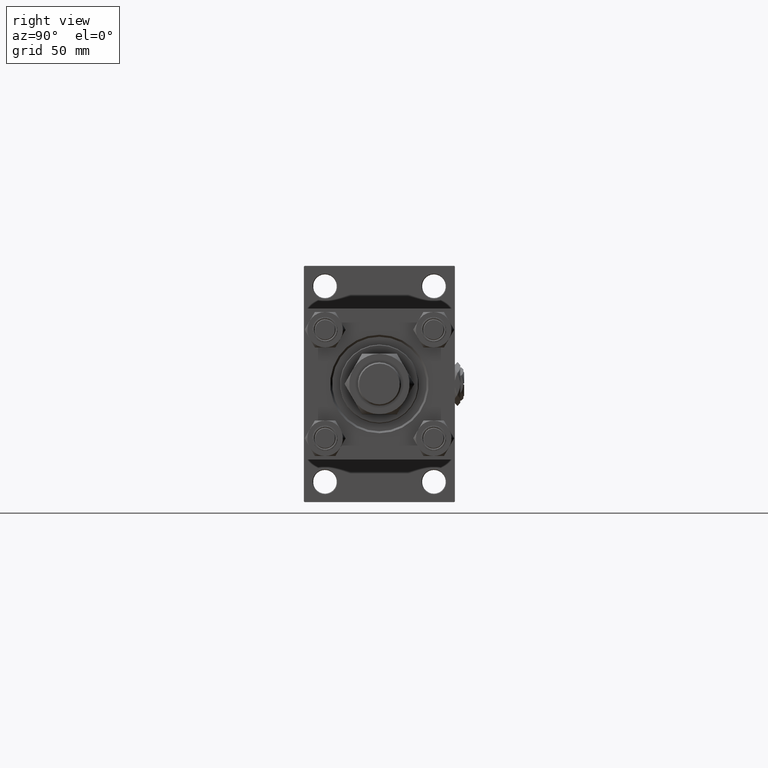
[diagram: clean part render]
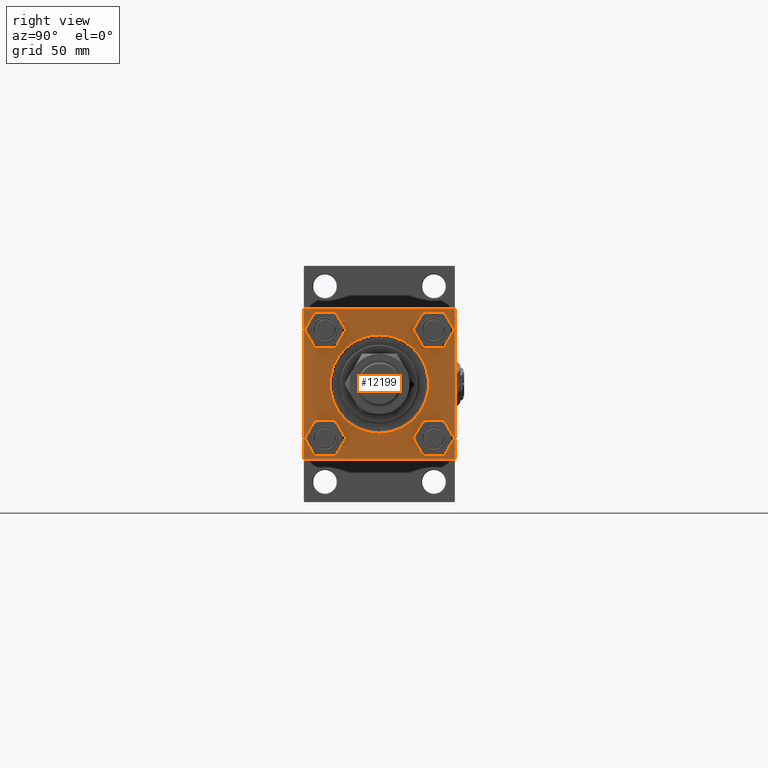
[diagram: same view with one face highlighted and labeled with its STEP entity id]
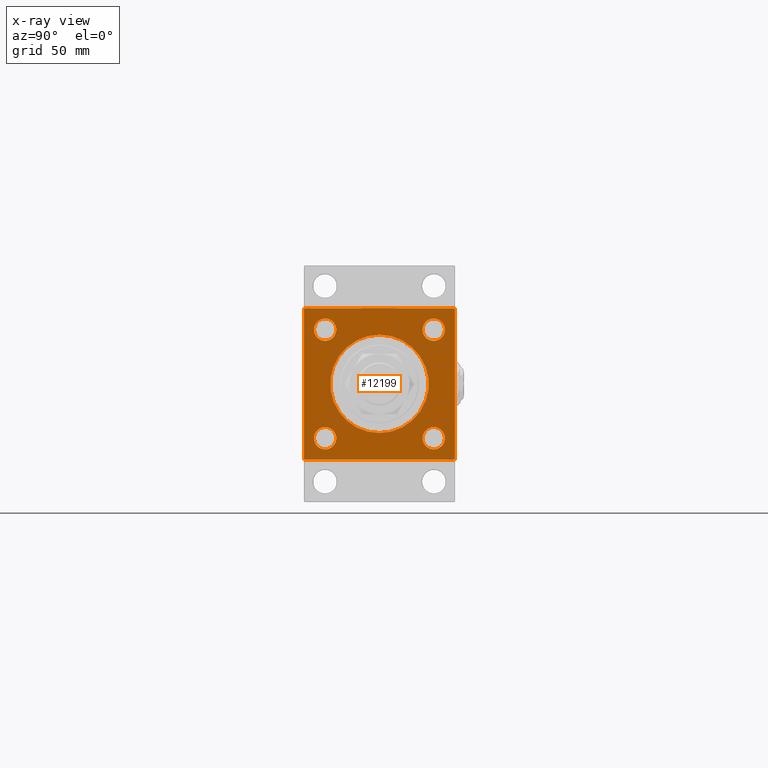
[diagram: x-ray of the same camera — body ghosted, the highlighted face saturated]
A machine part, right view. The second image highlights one B-rep face of the part: STEP entity #12199.
The next image is the same camera in x-ray: the body ghosted, the highlighted face saturated — about 0% of this face is hidden behind the body in this view.
In plain terms, the highlighted planar face has unit normal (-1, 0, 0).
Its self-contained STEP definition (entity closure, byte-faithful):
#170 = ORIENTED_EDGE ( 'NONE', *, *, #34029, .T. ) ;
#515 = LINE ( 'NONE', #21331, #48237 ) ;
#606 = FACE_BOUND ( 'NONE', #34636, .T. ) ;
#620 = CARTESIAN_POINT ( 'NONE',  ( 409.0000000000000000, 41.34999999999999432, 49.85000000000006537 ) ) ;
#664 = AXIS2_PLACEMENT_3D ( 'NONE', #25372, #48566, #27998 ) ;
#669 = EDGE_CURVE ( 'NONE', #11003, #32430, #17275, .T. ) ;
#838 = ORIENTED_EDGE ( 'NONE', *, *, #22503, .T. ) ;
#1967 = CARTESIAN_POINT ( 'NONE',  ( 409.0000000000000000, 0.000000000000000000, -37.50000000000003553 ) ) ;
#2072 = CARTESIAN_POINT ( 'NONE',  ( 409.0000000000000000, -41.34999999999998721, 41.35000000000000853 ) ) ;
#2780 = ORIENTED_EDGE ( 'NONE', *, *, #669, .T. ) ;
#2812 = DIRECTION ( 'NONE',  ( 0.000000000000000000, 0.000000000000000000, 1.000000000000000000 ) ) ;
#3130 = ORIENTED_EDGE ( 'NONE', *, *, #7884, .T. ) ;
#3833 = VECTOR ( 'NONE', #52653, 1000.000000000000000 ) ;
#3897 = VECTOR ( 'NONE', #33304, 1000.000000000000114 ) ;
#4094 = CIRCLE ( 'NONE', #28547, 8.500000000000063949 ) ;
#4181 = DIRECTION ( 'NONE',  ( -0.000000000000000000, 0.000000000000000000, 1.000000000000000000 ) ) ;
#4451 = CARTESIAN_POINT ( 'NONE',  ( 409.0000000000000000, 57.50000000000000000, 57.50000000000000711 ) ) ;
#4846 = VECTOR ( 'NONE', #5533, 1000.000000000000000 ) ;
#4854 = AXIS2_PLACEMENT_3D ( 'NONE', #24453, #15967, #16500 ) ;
#5298 = CIRCLE ( 'NONE', #43810, 8.500000000000063949 ) ;
#5533 = DIRECTION ( 'NONE',  ( 0.000000000000000000, 0.000000000000000000, -1.000000000000000000 ) ) ;
#6063 = EDGE_CURVE ( 'NONE', #14601, #33673, #41976, .T. ) ;
#6185 = CARTESIAN_POINT ( 'NONE',  ( 409.0000000000000000, -56.99999999999998579, -57.49999999999997868 ) ) ;
#6393 = CARTESIAN_POINT ( 'NONE',  ( 409.0000000000000000, 41.34999999999999432, -41.35000000000000142 ) ) ;
#7065 = CARTESIAN_POINT ( 'NONE',  ( 409.0000000000000000, 57.00000000000000000, -57.49999999999996447 ) ) ;
#7884 = EDGE_CURVE ( 'NONE', #28367, #35473, #36654, .T. ) ;
#7894 = DIRECTION ( 'NONE',  ( -1.000000000000000000, 0.000000000000000000, -0.000000000000000000 ) ) ;
#8015 = CARTESIAN_POINT ( 'NONE',  ( 409.0000000000000000, 0.000000000000000000, 0.000000000000000000 ) ) ;
#8094 = VERTEX_POINT ( 'NONE', #1967 ) ;
#8553 = FACE_OUTER_BOUND ( 'NONE', #25302, .T. ) ;
#9276 = CARTESIAN_POINT ( 'NONE',  ( 409.0000000000000000, -41.34999999999998721, 49.85000000000007248 ) ) ;
#9313 = ORIENTED_EDGE ( 'NONE', *, *, #6063, .T. ) ;
#9389 = EDGE_CURVE ( 'NONE', #10674, #45234, #515, .T. ) ;
#9496 = CARTESIAN_POINT ( 'NONE',  ( 409.0000000000000000, -41.34999999999998721, -49.85000000000007248 ) ) ;
#10674 = VERTEX_POINT ( 'NONE', #7065 ) ;
#11003 = VERTEX_POINT ( 'NONE', #9496 ) ;
#11081 = ORIENTED_EDGE ( 'NONE', *, *, #42383, .T. ) ;
#11829 = CARTESIAN_POINT ( 'NONE',  ( 409.0000000000000000, -57.49999999999999289, 57.00000000000004974 ) ) ;
#12118 = CARTESIAN_POINT ( 'NONE',  ( 409.0000000000000000, -41.34999999999998721, 41.35000000000000853 ) ) ;
#12199 = ADVANCED_FACE ( 'NONE', ( #606, #24977, #16221, #46075, #54029, #8553 ), #45801, .F. ) ;
#12786 = LINE ( 'NONE', #45111, #3897 ) ;
#13342 = EDGE_CURVE ( 'NONE', #24643, #25141, #47359, .T. ) ;
#13373 = EDGE_LOOP ( 'NONE', ( #3130, #37663 ) ) ;
#13490 = CARTESIAN_POINT ( 'NONE',  ( 409.0000000000000000, 0.000000000000000000, 0.000000000000000000 ) ) ;
#13570 = LINE ( 'NONE', #6185, #37353 ) ;
#13633 = EDGE_LOOP ( 'NONE', ( #9313, #170 ) ) ;
#13651 = DIRECTION ( 'NONE',  ( -1.000000000000000000, 0.000000000000000000, -0.000000000000000000 ) ) ;
#14165 = CARTESIAN_POINT ( 'NONE',  ( 409.0000000000000000, 57.50000000000000000, 57.00000000000000711 ) ) ;
#14498 = DIRECTION ( 'NONE',  ( 0.000000000000000000, 0.000000000000000000, 1.000000000000000000 ) ) ;
#14601 = VERTEX_POINT ( 'NONE', #28617 ) ;
#15270 = LINE ( 'NONE', #36615, #52467 ) ;
#15915 = LINE ( 'NONE', #44692, #3833 ) ;
#15967 = DIRECTION ( 'NONE',  ( -1.000000000000000000, 0.000000000000000000, -0.000000000000000000 ) ) ;
#16221 = FACE_BOUND ( 'NONE', #35675, .T. ) ;
#16500 = DIRECTION ( 'NONE',  ( 0.000000000000000000, 0.000000000000000000, 1.000000000000000000 ) ) ;
#16890 = VECTOR ( 'NONE', #30316, 1000.000000000000114 ) ;
#16937 = CARTESIAN_POINT ( 'NONE',  ( 409.0000000000000000, 41.34999999999999432, -32.84999999999994458 ) ) ;
#17275 = CIRCLE ( 'NONE', #664, 8.500000000000063949 ) ;
#17645 = CARTESIAN_POINT ( 'NONE',  ( 409.0000000000000000, -57.49999999999999289, -57.00000000000003553 ) ) ;
#18280 = EDGE_CURVE ( 'NONE', #48076, #30604, #47313, .T. ) ;
#18688 = EDGE_CURVE ( 'NONE', #30604, #25286, #15915, .T. ) ;
#18900 = ORIENTED_EDGE ( 'NONE', *, *, #36518, .T. ) ;
#19040 = CIRCLE ( 'NONE', #50510, 8.500000000000063949 ) ;
#19770 = DIRECTION ( 'NONE',  ( -1.000000000000000000, 0.000000000000000000, -0.000000000000000000 ) ) ;
#20489 = CARTESIAN_POINT ( 'NONE',  ( 409.0000000000000000, 57.00000000000000000, 57.50000000000000711 ) ) ;
#20593 = DIRECTION ( 'NONE',  ( -1.000000000000000000, 0.000000000000000000, -0.000000000000000000 ) ) ;
#21041 = EDGE_CURVE ( 'NONE', #48076, #21758, #46349, .T. ) ;
#21331 = CARTESIAN_POINT ( 'NONE',  ( 409.0000000000000000, 57.50000000000000000, -57.49999999999996447 ) ) ;
#21758 = VERTEX_POINT ( 'NONE', #28280 ) ;
#21969 = DIRECTION ( 'NONE',  ( -1.000000000000000000, 0.000000000000000000, -0.000000000000000000 ) ) ;
#22503 = EDGE_CURVE ( 'NONE', #8094, #23155, #42458, .T. ) ;
#23155 = VERTEX_POINT ( 'NONE', #31730 ) ;
#23616 = CARTESIAN_POINT ( 'NONE',  ( 409.0000000000000000, 41.34999999999999432, -41.35000000000000142 ) ) ;
#24376 = CIRCLE ( 'NONE', #26142, 8.500000000000063949 ) ;
#24453 = CARTESIAN_POINT ( 'NONE',  ( 409.0000000000000000, 0.000000000000000000, 0.000000000000000000 ) ) ;
#24643 = VERTEX_POINT ( 'NONE', #35512 ) ;
#24800 = ORIENTED_EDGE ( 'NONE', *, *, #21041, .F. ) ;
#24977 = FACE_BOUND ( 'NONE', #13633, .T. ) ;
#25141 = VERTEX_POINT ( 'NONE', #620 ) ;
#25286 = VERTEX_POINT ( 'NONE', #35661 ) ;
#25302 = EDGE_LOOP ( 'NONE', ( #35279, #11081, #43956, #18900, #24800, #41421, #53062, #51361 ) ) ;
#25372 = CARTESIAN_POINT ( 'NONE',  ( 409.0000000000000000, -41.34999999999998721, -41.35000000000000853 ) ) ;
#25706 = DIRECTION ( 'NONE',  ( 0.000000000000000000, -1.000000000000000000, -1.206764157201257291E-16 ) ) ;
#26142 = AXIS2_PLACEMENT_3D ( 'NONE', #6393, #27454, #2812 ) ;
#27454 = DIRECTION ( 'NONE',  ( -1.000000000000000000, 0.000000000000000000, -0.000000000000000000 ) ) ;
#27998 = DIRECTION ( 'NONE',  ( 0.000000000000000000, 0.000000000000000000, 1.000000000000000000 ) ) ;
#28280 = CARTESIAN_POINT ( 'NONE',  ( 409.0000000000000000, 57.50000000000000000, -56.99999999999996447 ) ) ;
#28336 = EDGE_CURVE ( 'NONE', #23155, #8094, #45186, .T. ) ;
#28367 = VERTEX_POINT ( 'NONE', #43340 ) ;
#28547 = AXIS2_PLACEMENT_3D ( 'NONE', #28690, #7894, #37191 ) ;
#28617 = CARTESIAN_POINT ( 'NONE',  ( 409.0000000000000000, 41.34999999999999432, -49.85000000000006537 ) ) ;
#28690 = CARTESIAN_POINT ( 'NONE',  ( 409.0000000000000000, -41.34999999999998721, -41.35000000000000853 ) ) ;
#28807 = DIRECTION ( 'NONE',  ( -1.000000000000000000, 0.000000000000000000, -0.000000000000000000 ) ) ;
#29871 = AXIS2_PLACEMENT_3D ( 'NONE', #34759, #35304, #14498 ) ;
#30316 = DIRECTION ( 'NONE',  ( 0.000000000000000000, -0.7071067811865474617, 0.7071067811865474617 ) ) ;
#30597 = CARTESIAN_POINT ( 'NONE',  ( 409.0000000000000000, 57.00000000000000000, 57.50000000000000711 ) ) ;
#30604 = VERTEX_POINT ( 'NONE', #20489 ) ;
#31730 = CARTESIAN_POINT ( 'NONE',  ( 409.0000000000000000, 4.592425496802578311E-15, 37.50000000000003553 ) ) ;
#31961 = DIRECTION ( 'NONE',  ( -0.000000000000000000, -0.7071067811865916486, -0.7071067811865033859 ) ) ;
#32430 = VERTEX_POINT ( 'NONE', #47046 ) ;
#33304 = DIRECTION ( 'NONE',  ( -0.000000000000000000, 0.7071067811865474617, 0.7071067811865474617 ) ) ;
#33673 = VERTEX_POINT ( 'NONE', #16937 ) ;
#34001 = CARTESIAN_POINT ( 'NONE',  ( 409.0000000000000000, -57.49999999999999289, 57.49999999999999289 ) ) ;
#34029 = EDGE_CURVE ( 'NONE', #33673, #14601, #24376, .T. ) ;
#34636 = EDGE_LOOP ( 'NONE', ( #2780, #52169 ) ) ;
#34759 = CARTESIAN_POINT ( 'NONE',  ( 409.0000000000000000, 41.34999999999999432, 41.35000000000000142 ) ) ;
#34907 = EDGE_CURVE ( 'NONE', #35473, #28367, #5298, .T. ) ;
#35206 = DIRECTION ( 'NONE',  ( 0.000000000000000000, 0.000000000000000000, 1.000000000000000000 ) ) ;
#35279 = ORIENTED_EDGE ( 'NONE', *, *, #38073, .T. ) ;
#35304 = DIRECTION ( 'NONE',  ( -1.000000000000000000, 0.000000000000000000, -0.000000000000000000 ) ) ;
#35473 = VERTEX_POINT ( 'NONE', #9276 ) ;
#35512 = CARTESIAN_POINT ( 'NONE',  ( 409.0000000000000000, 41.34999999999999432, 32.84999999999994458 ) ) ;
#35661 = CARTESIAN_POINT ( 'NONE',  ( 409.0000000000000000, -56.99999999999998579, 57.49999999999999289 ) ) ;
#35675 = EDGE_LOOP ( 'NONE', ( #47109, #44849 ) ) ;
#36518 = EDGE_CURVE ( 'NONE', #10674, #21758, #12786, .T. ) ;
#36615 = CARTESIAN_POINT ( 'NONE',  ( 409.0000000000000000, -57.49999999999999289, 57.00000000000004974 ) ) ;
#36654 = CIRCLE ( 'NONE', #49794, 8.500000000000063949 ) ;
#37191 = DIRECTION ( 'NONE',  ( 0.000000000000000000, 0.000000000000000000, 1.000000000000000000 ) ) ;
#37353 = VECTOR ( 'NONE', #51090, 1000.000000000000114 ) ;
#37663 = ORIENTED_EDGE ( 'NONE', *, *, #34907, .T. ) ;
#37764 = CARTESIAN_POINT ( 'NONE',  ( 409.0000000000000000, 41.34999999999999432, 41.35000000000000142 ) ) ;
#38073 = EDGE_CURVE ( 'NONE', #45235, #46306, #42232, .T. ) ;
#38203 = AXIS2_PLACEMENT_3D ( 'NONE', #13490, #21969, #46897 ) ;
#40134 = DIRECTION ( 'NONE',  ( -1.000000000000000000, 0.000000000000000000, -0.000000000000000000 ) ) ;
#40438 = AXIS2_PLACEMENT_3D ( 'NONE', #8015, #20593, #4181 ) ;
#41069 = ORIENTED_EDGE ( 'NONE', *, *, #28336, .T. ) ;
#41266 = EDGE_CURVE ( 'NONE', #32430, #11003, #4094, .T. ) ;
#41421 = ORIENTED_EDGE ( 'NONE', *, *, #18280, .T. ) ;
#41976 = CIRCLE ( 'NONE', #44611, 8.500000000000063949 ) ;
#42232 = LINE ( 'NONE', #34001, #4846 ) ;
#42383 = EDGE_CURVE ( 'NONE', #46306, #45234, #13570, .T. ) ;
#42458 = CIRCLE ( 'NONE', #4854, 37.50000000000003553 ) ;
#42681 = DIRECTION ( 'NONE',  ( 0.000000000000000000, 0.000000000000000000, 1.000000000000000000 ) ) ;
#42778 = EDGE_CURVE ( 'NONE', #25141, #24643, #19040, .T. ) ;
#43340 = CARTESIAN_POINT ( 'NONE',  ( 409.0000000000000000, -41.34999999999998721, 32.84999999999995168 ) ) ;
#43430 = EDGE_LOOP ( 'NONE', ( #838, #41069 ) ) ;
#43810 = AXIS2_PLACEMENT_3D ( 'NONE', #2072, #40134, #35206 ) ;
#43956 = ORIENTED_EDGE ( 'NONE', *, *, #9389, .F. ) ;
#44611 = AXIS2_PLACEMENT_3D ( 'NONE', #23616, #19770, #53189 ) ;
#44692 = CARTESIAN_POINT ( 'NONE',  ( 409.0000000000000000, 57.50000000000000000, 57.50000000000000711 ) ) ;
#44849 = ORIENTED_EDGE ( 'NONE', *, *, #42778, .T. ) ;
#45111 = CARTESIAN_POINT ( 'NONE',  ( 409.0000000000000000, 57.50000000000000000, -56.99999999999996447 ) ) ;
#45186 = CIRCLE ( 'NONE', #38203, 37.50000000000003553 ) ;
#45234 = VERTEX_POINT ( 'NONE', #49359 ) ;
#45235 = VERTEX_POINT ( 'NONE', #11829 ) ;
#45530 = DIRECTION ( 'NONE',  ( 0.000000000000000000, 0.000000000000000000, 1.000000000000000000 ) ) ;
#45801 = PLANE ( 'NONE',  #40438 ) ;
#46075 = FACE_BOUND ( 'NONE', #13373, .T. ) ;
#46306 = VERTEX_POINT ( 'NONE', #17645 ) ;
#46349 = LINE ( 'NONE', #4451, #53752 ) ;
#46897 = DIRECTION ( 'NONE',  ( 0.000000000000000000, 0.000000000000000000, 1.000000000000000000 ) ) ;
#47046 = CARTESIAN_POINT ( 'NONE',  ( 409.0000000000000000, -41.34999999999998721, -32.84999999999995168 ) ) ;
#47109 = ORIENTED_EDGE ( 'NONE', *, *, #13342, .T. ) ;
#47313 = LINE ( 'NONE', #30597, #16890 ) ;
#47359 = CIRCLE ( 'NONE', #29871, 8.500000000000063949 ) ;
#48076 = VERTEX_POINT ( 'NONE', #14165 ) ;
#48237 = VECTOR ( 'NONE', #25706, 1000.000000000000000 ) ;
#48566 = DIRECTION ( 'NONE',  ( -1.000000000000000000, 0.000000000000000000, -0.000000000000000000 ) ) ;
#49359 = CARTESIAN_POINT ( 'NONE',  ( 409.0000000000000000, -56.99999999999998579, -57.49999999999997868 ) ) ;
#49794 = AXIS2_PLACEMENT_3D ( 'NONE', #12118, #28807, #45530 ) ;
#50510 = AXIS2_PLACEMENT_3D ( 'NONE', #37764, #13651, #42681 ) ;
#51090 = DIRECTION ( 'NONE',  ( 0.000000000000000000, 0.7071067811865916486, -0.7071067811865033859 ) ) ;
#51361 = ORIENTED_EDGE ( 'NONE', *, *, #51810, .T. ) ;
#51810 = EDGE_CURVE ( 'NONE', #25286, #45235, #15270, .T. ) ;
#52169 = ORIENTED_EDGE ( 'NONE', *, *, #41266, .T. ) ;
#52467 = VECTOR ( 'NONE', #31961, 1000.000000000000114 ) ;
#52653 = DIRECTION ( 'NONE',  ( 0.000000000000000000, -1.000000000000000000, -1.206764157201257291E-16 ) ) ;
#53062 = ORIENTED_EDGE ( 'NONE', *, *, #18688, .T. ) ;
#53189 = DIRECTION ( 'NONE',  ( 0.000000000000000000, 0.000000000000000000, 1.000000000000000000 ) ) ;
#53747 = DIRECTION ( 'NONE',  ( 0.000000000000000000, 0.000000000000000000, -1.000000000000000000 ) ) ;
#53752 = VECTOR ( 'NONE', #53747, 1000.000000000000000 ) ;
#54029 = FACE_BOUND ( 'NONE', #43430, .T. ) ;